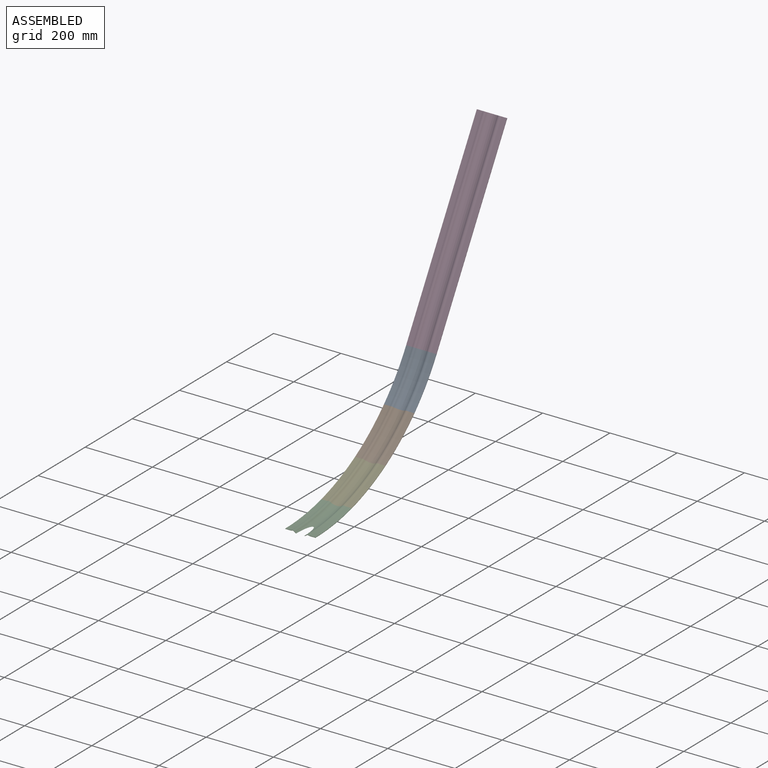
[diagram: assembled view]
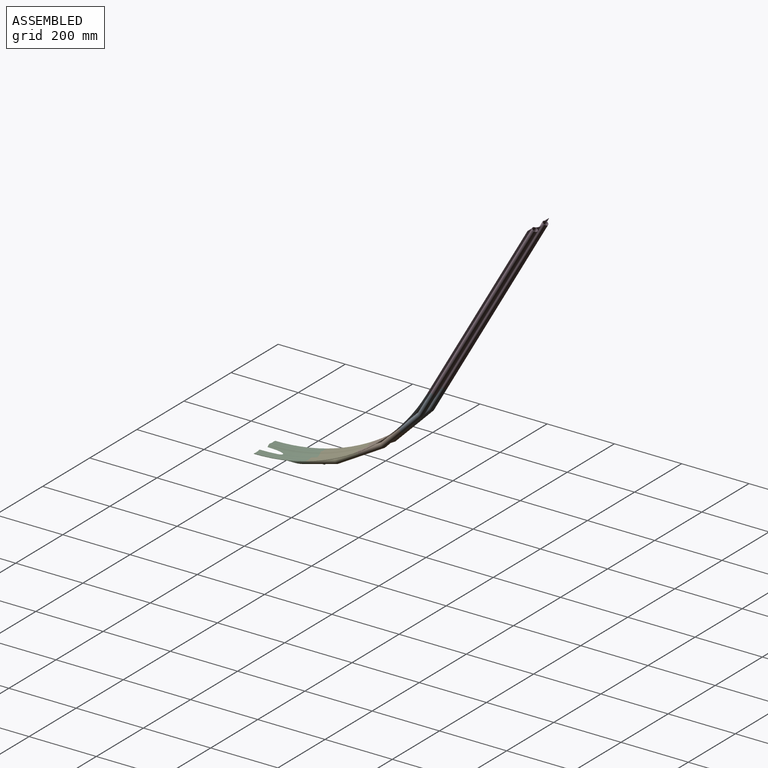
[diagram: assembled view, second angle]
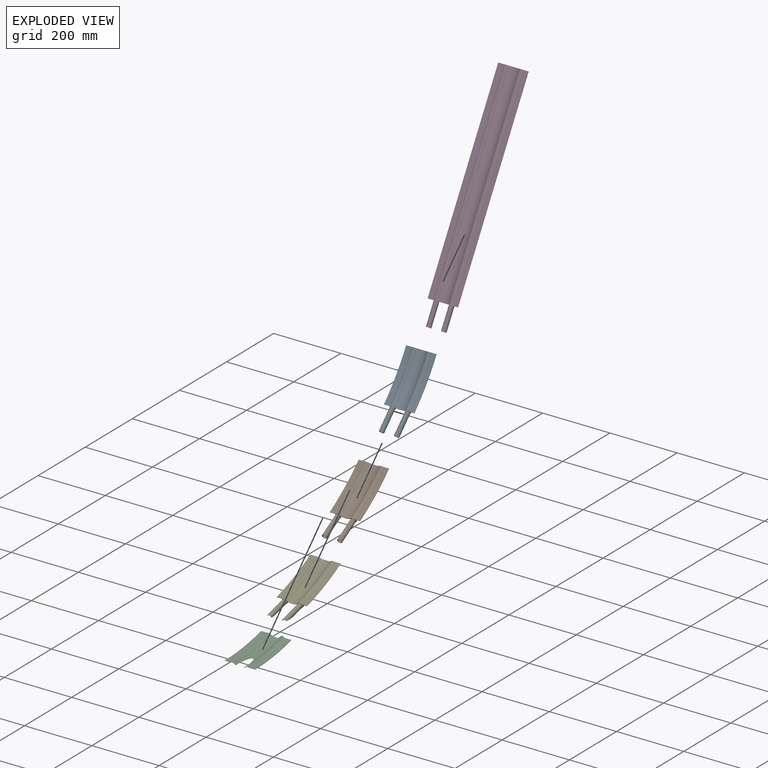
[diagram: exploded view]
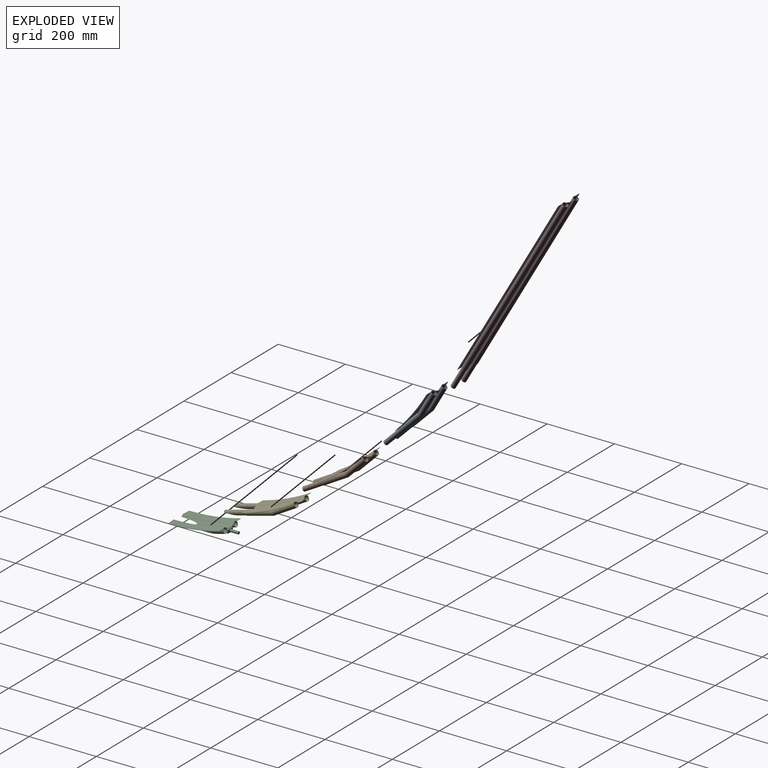
[diagram: exploded view, second angle]
ASSEMBLY  parts=5 mates=4
PART A: 38 faces, bbox 90x225.5x34.1 mm
  f0: cylinder r=7mm len=15.5mm, axis (0,-0.99,0.13), area 505.4mm2, adj f29,f37
  f1: cylinder r=7mm len=15.5mm, axis (0,-0.99,0.13), area 505.4mm2, adj f26,f33
  f2: torus R=577.2mm, axis (-1,0,0), area 653.1mm2, adj f3,f8,f9,f21,f24,f27
  f3: torus R=600mm, axis (-1,0,0), area 638mm2, adj f2,f4,f24,f27
  f4: torus R=582.72mm, axis (-1,0,0), area 669.3mm2, adj f3,f8,f9,f22,f24,f27
  f5: torus R=582.72mm, axis (-1,0,0), area 669.3mm2, adj f6,f8,f9,f22,f25,f28
  f6: torus R=600mm, axis (-1,0,0), area 638mm2, adj f5,f7,f25,f28
  f7: torus R=577.2mm, axis (-1,0,0), area 653.1mm2, adj f6,f8,f9,f23,f25,f28
  f8: plane 90x15.86mm, normal (0,0.99,0.13), area 163.4mm2, adj f2,f4,f5,f7,f10,f11,f12,f13
  f9: plane 90x15.86mm, normal (0,-0.99,0.13), area 163.4mm2, adj f2,f4,f5,f7,f10,f11,f12,f13
  f10: plane 155.12x6.08mm, normal (1,0,0), area 155.4mm2, adj f8,f9,f11,f23
  f11: cylinder r=593.2mm len=154.86mm, axis (-1,0,0), area 2329.5mm2, adj f8,f9,f10,f12
  f12: torus R=577.2mm, axis (-1,0,0), area 789.4mm2, adj f8,f9,f11,f13
  f13: torus R=600mm, axis (-1,0,0), area 1346.6mm2, adj f8,f9,f12,f14
  f14: torus R=582.72mm, axis (-1,0,0), area 840.6mm2, adj f8,f9,f13,f15
  f15: torus R=570mm, axis (-1,0,0), area 4050.3mm2, adj f8,f9,f14,f16
  f16: torus R=582.72mm, axis (-1,0,0), area 840.6mm2, adj f8,f9,f15,f17
  f17: torus R=600mm, axis (-1,0,0), area 1346.6mm2, adj f8,f9,f16,f18
  f18: torus R=577.2mm, axis (-1,0,0), area 789.4mm2, adj f8,f9,f17,f19
  f19: cylinder r=593.2mm len=154.86mm, axis (-1,0,0), area 2329.5mm2, adj f8,f9,f18,f20
  f20: plane 155.12x6.08mm, normal (-1,0,0), area 155.4mm2, adj f8,f9,f19,f21
  f21: cylinder r=594.2mm len=155.12mm, axis (-1,0,0), area 2333.4mm2, adj f2,f8,f9,f20
  f22: torus R=570mm, axis (-1,0,0), area 4192.1mm2, adj f4,f5,f8,f9
  f23: cylinder r=594.2mm len=155.12mm, axis (-1,0,0), area 2333.4mm2, adj f7,f8,f9,f10
  f24: cylinder r=8mm len=81.45mm, axis (0,-0.99,0.13), area 3464.8mm2, adj f2,f3,f4,f9,f27
  f25: cylinder r=8mm len=81.45mm, axis (0,-0.99,0.13), area 3464.6mm2, adj f5,f6,f7,f9,f28
  f26: cylinder r=7mm len=81.06mm, axis (0,0.99,0.13), area 3474.2mm2, adj f1,f8
  f27: cylinder r=8mm len=81.45mm, axis (0,0.99,0.13), area 3465.4mm2, adj f2,f3,f4,f8,f24
  f28: cylinder r=8mm len=81.45mm, axis (0,0.99,0.13), area 3465.6mm2, adj f5,f6,f7,f8,f25
  f29: cylinder r=7mm len=81.06mm, axis (0,0.99,0.13), area 3474.2mm2, adj f0,f8
  f30: cylinder r=6mm len=135.41mm, axis (0,0.99,-0.13), area 5089.4mm2, adj f32,f33
  f31: cylinder r=7mm len=68.75mm, axis (0,0.99,-0.13), area 2968.8mm2, adj f9,f32
  f32: plane 14x13.88mm, normal (0,-0.99,0.13), area 40.8mm2, adj f30,f31
  f33: plane 14x13.88mm, normal (0,0.99,-0.13), area 40.8mm2, adj f1,f30
  f34: cylinder r=7mm len=68.75mm, axis (0,0.99,-0.13), area 2968.8mm2, adj f9,f36
  f35: cylinder r=6mm len=135.41mm, axis (0,0.99,-0.13), area 5089.4mm2, adj f36,f37
  f36: plane 14x13.88mm, normal (0,-0.99,0.13), area 40.8mm2, adj f34,f35
  f37: plane 14x13.88mm, normal (0,0.99,-0.13), area 40.8mm2, adj f0,f35
PART B: same geometry as A
PART C: 47 faces, bbox 90.2x181.4x29.7 mm
  f0: cylinder r=7mm len=77.91mm, axis (0,-0.99,0.13), area 593.5mm2, adj f2,f9,f31,f33
  f1: cylinder r=7mm len=77.91mm, axis (0,-0.99,0.13), area 593.5mm2, adj f3,f6,f36,f38
  f2: plane 33.01x5.45mm, normal (0,-0.99,0.13), area 33.5mm2, adj f0,f13,f15,f17,f18,f19,f20,f21
  f3: plane 33.01x5.45mm, normal (0,-0.99,0.13), area 33.5mm2, adj f1,f10,f12,f22,f23,f24,f25,f26
  f4: cylinder r=8mm len=78.57mm, axis (0,-0.99,0.13), area 694.2mm2, adj f7,f10,f11,f12,f36,f38
  f5: cylinder r=8mm len=78.57mm, axis (0,-0.99,0.13), area 694.2mm2, adj f8,f13,f14,f15,f31,f33
  f6: cylinder r=7mm len=79.5mm, axis (0,0.99,0.13), area 2518.9mm2, adj f1,f16,f36,f37,f38
  f7: cylinder r=8mm len=80.01mm, axis (0,0.99,0.13), area 2364.8mm2, adj f4,f10,f11,f12,f16,f35,f36,f37
  f8: cylinder r=8mm len=80.01mm, axis (0,0.99,0.13), area 2365.1mm2, adj f5,f13,f14,f15,f16,f31,f32,f33
  f9: cylinder r=7mm len=79.5mm, axis (0,0.99,0.13), area 2518.9mm2, adj f0,f16,f31,f32,f33
  f10: torus R=577.2mm, axis (-1,0,0), area 653.1mm2, adj f3,f4,f7,f11,f16,f28
  f11: torus R=600mm, axis (-1,0,0), area 638.3mm2, adj f4,f7,f10,f12
  f12: torus R=582.72mm, axis (-1,0,0), area 640.9mm2, adj f3,f4,f7,f11,f16,f29,f39
  f13: torus R=582.72mm, axis (-1,0,0), area 640.9mm2, adj f2,f5,f8,f14,f16,f29,f39
  f14: torus R=600mm, axis (-1,0,0), area 638.3mm2, adj f5,f8,f13,f15
  f15: torus R=577.2mm, axis (-1,0,0), area 653.1mm2, adj f2,f5,f8,f14,f16,f30
  f16: plane 90x15.86mm, normal (0,0.99,0.13), area 163.4mm2, adj f6,f7,f8,f9,f10,f12,f13,f15
  f17: plane 155.12x6.08mm, normal (1,0,0), area 155.4mm2, adj f2,f16,f18,f30
  f18: cylinder r=593.2mm len=154.86mm, axis (-1,0,0), area 2329.5mm2, adj f2,f16,f17,f19
  f19: torus R=577.2mm, axis (-1,0,0), area 789.4mm2, adj f2,f16,f18,f20
  f20: torus R=600mm, axis (-1,0,0), area 1346.6mm2, adj f2,f16,f19,f21
  f21: torus R=582.72mm, axis (-1,0,0), area 840.6mm2, adj f2,f16,f20,f22
  f22: torus R=570mm, axis (-1,0,0), area 2995.3mm2, adj f2,f3,f16,f21,f23,f39
  f23: torus R=582.72mm, axis (-1,0,0), area 840.6mm2, adj f3,f16,f22,f24
  f24: torus R=600mm, axis (-1,0,0), area 1346.6mm2, adj f3,f16,f23,f25
  f25: torus R=577.2mm, axis (-1,0,0), area 789.4mm2, adj f3,f16,f24,f26
  f26: cylinder r=593.2mm len=154.86mm, axis (-1,0,0), area 2329.5mm2, adj f3,f16,f25,f27
  f27: plane 155.12x6.08mm, normal (-1,0,0), area 155.4mm2, adj f3,f16,f26,f28
  f28: cylinder r=594.2mm len=155.12mm, axis (-1,0,0), area 2333.4mm2, adj f3,f10,f16,f27
  f29: torus R=570mm, axis (-1,0,0), area 1711.8mm2, adj f12,f13,f16,f39,f40,f42,f43,f44
  f30: cylinder r=594.2mm len=155.12mm, axis (-1,0,0), area 2333.4mm2, adj f2,f15,f16,f17
  f31: cylinder r=17mm len=121.62mm, axis (0,-0.99,0.13), area 305.4mm2, adj f0,f2,f5,f8,f9,f32
  f32: cylinder r=7mm len=18.85mm, axis (0,-0.99,0.13), area 31.5mm2, adj f8,f9,f31,f33
  f33: cylinder r=17mm len=132.51mm, axis (0,-0.99,0.13), area 313.3mm2, adj f0,f2,f5,f8,f9,f32,f34
  f34: plane 21.5x2.98mm, normal (0,-0.13,-0.99), area 7.2mm2, adj f8,f33
  f35: plane 21.5x2.98mm, normal (0,-0.13,-0.99), area 7.2mm2, adj f7,f36
  f36: cylinder r=17mm len=132.51mm, axis (0,-0.99,0.13), area 313.3mm2, adj f1,f3,f4,f6,f7,f35,f37
  f37: cylinder r=7mm len=18.85mm, axis (0,-0.99,0.13), area 31.5mm2, adj f6,f7,f36,f38
  f38: cylinder r=17mm len=121.62mm, axis (0,-0.99,0.13), area 305.4mm2, adj f1,f3,f4,f6,f7,f37
  f39: plane 64.22x28.49mm, normal (0,-0.13,-0.99), area 428.6mm2, adj f2,f3,f12,f13,f22,f29
  f40: plane 67.32x20mm, normal (0,-0.13,-0.99), area 1212.1mm2, adj f29,f41,f42,f43
  f41: plane 20x9.91mm, normal (0,0.99,-0.13), area 149.7mm2, adj f40,f42,f43,f44,f45
  f42: plane 68.63x11.99mm, normal (1,0,0), area 398.4mm2, adj f29,f40,f41,f44
  f43: plane 68.63x11.99mm, normal (-1,0,0), area 398.4mm2, adj f29,f40,f41,f44
  f44: plane 20x15.78mm, normal (0,0.13,0.99), area 224.3mm2, adj f29,f41,f42,f43
  f45: cylinder r=4mm len=25.83mm, axis (0,-0.99,0.13), area 628.3mm2, adj f41,f46
  f46: plane 8x7.93mm, normal (0,0.99,-0.13), area 50.3mm2, adj f45
PART D: 32 faces, bbox 90x667.5x16 mm
  f0: cylinder r=7mm len=532.5mm, axis (0,-1,0), area 23420.6mm2, adj f22,f31
  f1: cylinder r=7mm len=532.5mm, axis (0,-1,0), area 23420.6mm2, adj f22,f27
  f2: plane 600x15mm, normal (0,0,-1), area 9000mm2, adj f3,f21,f22,f23
  f3: cylinder r=17mm len=600mm, axis (0,-1,0), area 1283mm2, adj f2,f4,f22,f23
  f4: cylinder r=8mm len=600mm, axis (0,-1,0), area 20942.2mm2, adj f3,f5,f22,f23
  f5: cylinder r=17mm len=600mm, axis (0,-1,0), area 1476.4mm2, adj f4,f6,f22,f23
  f6: cylinder r=31mm len=600mm, axis (0,-1,0), area 16011.1mm2, adj f5,f7,f22,f23
  f7: cylinder r=17mm len=600mm, axis (0,-1,0), area 1476.4mm2, adj f6,f8,f22,f23
  f8: cylinder r=8mm len=600mm, axis (0,-1,0), area 20942.2mm2, adj f7,f9,f22,f23
  f9: cylinder r=17mm len=600mm, axis (0,-1,0), area 1283mm2, adj f8,f10,f22,f23
  f10: plane 600x15mm, normal (0,0,-1), area 9000mm2, adj f9,f11,f22,f23
  f11: plane 600x1mm, normal (1,0,0), area 600mm2, adj f10,f12,f22,f23
  f12: plane 600x15mm, normal (0,0,1), area 9000mm2, adj f11,f13,f22,f23
  f13: cylinder r=16mm len=600mm, axis (0,-1,0), area 3051.1mm2, adj f12,f14,f22,f23
  f14: cylinder r=8mm len=600mm, axis (0,-1,0), area 5208mm2, adj f13,f15,f22,f23
  f15: cylinder r=16mm len=600mm, axis (0,-1,0), area 3233.1mm2, adj f14,f16,f22,f23
  f16: cylinder r=30mm len=600mm, axis (0,-1,0), area 15494.6mm2, adj f15,f17,f22,f23
  f17: cylinder r=16mm len=600mm, axis (0,-1,0), area 3233.1mm2, adj f16,f18,f22,f23
  f18: cylinder r=8mm len=600mm, axis (0,-1,0), area 5208mm2, adj f17,f19,f22,f23
  f19: cylinder r=16mm len=600mm, axis (0,-1,0), area 3051.1mm2, adj f18,f20,f22,f23
  f20: plane 600x15mm, normal (0,0,1), area 9000mm2, adj f19,f21,f22,f23
  f21: plane 600x1mm, normal (-1,0,0), area 600mm2, adj f2,f20,f22,f23
  f22: plane 90x16mm, normal (0,1,0), area 163.4mm2, adj f0,f1,f2,f3,f4,f5,f6,f7
  f23: plane 90x16mm, normal (0,-1,0), area 163.4mm2, adj f2,f3,f4,f5,f6,f7,f8,f9
  f24: cylinder r=6mm len=135mm, axis (0,1,0), area 5089.4mm2, adj f26,f27
  f25: cylinder r=7mm len=67.5mm, axis (0,1,0), area 2968.8mm2, adj f23,f26
  f26: plane 14x14mm, normal (0,-1,0), area 40.8mm2, adj f24,f25
  f27: plane 14x14mm, normal (0,1,0), area 40.8mm2, adj f1,f24
  f28: cylinder r=7mm len=67.5mm, axis (0,1,0), area 2968.8mm2, adj f23,f30
  f29: cylinder r=6mm len=135mm, axis (0,1,0), area 5089.4mm2, adj f30,f31
  f30: plane 14x14mm, normal (0,-1,0), area 40.8mm2, adj f28,f29
  f31: plane 14x14mm, normal (0,1,0), area 40.8mm2, adj f0,f29
PART E: 44 faces, bbox 90x225.5x34.1 mm
  f0: plane 13.34x6.62mm, normal (0,-0.99,0.13), area 16.5mm2, adj f32,f33,f41,f43
  f1: plane 13.34x6.62mm, normal (0,-0.99,0.13), area 16.5mm2, adj f35,f36,f38,f39
  f2: cylinder r=7mm len=15.5mm, axis (0,-0.99,0.13), area 505.4mm2, adj f31,f37
  f3: cylinder r=7mm len=15.5mm, axis (0,-0.99,0.13), area 505.4mm2, adj f28,f34
  f4: torus R=577.2mm, axis (-1,0,0), area 653.1mm2, adj f5,f10,f11,f23,f26,f29
  f5: torus R=600mm, axis (-1,0,0), area 638mm2, adj f4,f6,f26,f29
  f6: torus R=582.72mm, axis (-1,0,0), area 669.3mm2, adj f5,f10,f11,f24,f26,f29
  f7: torus R=582.72mm, axis (-1,0,0), area 669.3mm2, adj f8,f10,f11,f24,f27,f30
  f8: torus R=600mm, axis (-1,0,0), area 638mm2, adj f7,f9,f27,f30
  f9: torus R=577.2mm, axis (-1,0,0), area 653.1mm2, adj f8,f10,f11,f25,f27,f30
  f10: plane 90x15.86mm, normal (0,0.99,0.13), area 163.4mm2, adj f4,f6,f7,f9,f12,f13,f14,f15
  f11: plane 90x15.86mm, normal (0,-0.99,0.13), area 163.4mm2, adj f4,f6,f7,f9,f12,f13,f14,f15
  f12: plane 155.12x6.08mm, normal (1,0,0), area 155.4mm2, adj f10,f11,f13,f25
  f13: cylinder r=593.2mm len=154.86mm, axis (-1,0,0), area 2329.5mm2, adj f10,f11,f12,f14
  f14: torus R=577.2mm, axis (-1,0,0), area 789.4mm2, adj f10,f11,f13,f15
  f15: torus R=600mm, axis (-1,0,0), area 1346.6mm2, adj f10,f11,f14,f16
  f16: torus R=582.72mm, axis (-1,0,0), area 840.6mm2, adj f10,f11,f15,f17
  f17: torus R=570mm, axis (-1,0,0), area 4050.3mm2, adj f10,f11,f16,f18
  f18: torus R=582.72mm, axis (-1,0,0), area 840.6mm2, adj f10,f11,f17,f19
  f19: torus R=600mm, axis (-1,0,0), area 1346.6mm2, adj f10,f11,f18,f20
  f20: torus R=577.2mm, axis (-1,0,0), area 789.4mm2, adj f10,f11,f19,f21
  f21: cylinder r=593.2mm len=154.86mm, axis (-1,0,0), area 2329.5mm2, adj f10,f11,f20,f22
  f22: plane 155.12x6.08mm, normal (-1,0,0), area 155.4mm2, adj f10,f11,f21,f23
  f23: cylinder r=594.2mm len=155.12mm, axis (-1,0,0), area 2333.4mm2, adj f4,f10,f11,f22
  f24: torus R=570mm, axis (-1,0,0), area 4192.1mm2, adj f6,f7,f10,f11
  f25: cylinder r=594.2mm len=155.12mm, axis (-1,0,0), area 2333.4mm2, adj f9,f10,f11,f12
  f26: cylinder r=8mm len=81.45mm, axis (0,-0.99,0.13), area 3464.8mm2, adj f4,f5,f6,f11,f29
  f27: cylinder r=8mm len=81.45mm, axis (0,-0.99,0.13), area 3464.6mm2, adj f7,f8,f9,f11,f30
  f28: cylinder r=7mm len=81.06mm, axis (0,0.99,0.13), area 3474.2mm2, adj f3,f10
  f29: cylinder r=8mm len=81.45mm, axis (0,0.99,0.13), area 3465.4mm2, adj f4,f5,f6,f10,f26
  f30: cylinder r=8mm len=81.45mm, axis (0,0.99,0.13), area 3465.6mm2, adj f7,f8,f9,f10,f27
  f31: cylinder r=7mm len=81.06mm, axis (0,0.99,0.13), area 3474.2mm2, adj f2,f10
  f32: cylinder r=6mm len=135.41mm, axis (0,0.99,-0.13), area 4587.9mm2, adj f0,f34,f41,f42,f43
  f33: cylinder r=7mm len=68.75mm, axis (0,0.99,-0.13), area 2356.9mm2, adj f0,f11,f41,f42,f43
  f34: plane 14x13.88mm, normal (0,0.99,-0.13), area 40.8mm2, adj f3,f32
  f35: cylinder r=7mm len=68.75mm, axis (0,0.99,-0.13), area 2356.9mm2, adj f1,f11,f38,f39,f40
  f36: cylinder r=6mm len=135.41mm, axis (0,0.99,-0.13), area 4587.9mm2, adj f1,f37,f38,f39,f40
  f37: plane 14x13.88mm, normal (0,0.99,-0.13), area 40.8mm2, adj f2,f36
  f38: cylinder r=17mm len=26.06mm, axis (0,-0.92,0.38), area 27.1mm2, adj f1,f35,f36,f40
  f39: cylinder r=17mm len=37.47mm, axis (0,-0.92,0.38), area 43.5mm2, adj f1,f35,f36,f40
  f40: cylinder r=7mm len=19.94mm, axis (0,-0.92,0.38), area 32.5mm2, adj f35,f36,f38,f39
  f41: cylinder r=17mm len=37.47mm, axis (0,-0.92,0.38), area 43.5mm2, adj f0,f32,f33,f42
  f42: cylinder r=7mm len=19.94mm, axis (0,-0.92,0.38), area 32.5mm2, adj f32,f33,f41,f43
  f43: cylinder r=17mm len=26.06mm, axis (0,-0.92,0.38), area 27.1mm2, adj f0,f32,f33,f42
PLACE A rot(axis=(1,0,0),52.5deg) t=(0,482.36,229.87)mm
PLACE B rot(axis=(1,0,0),37.5deg) t=(0,370.13,117.64)mm
PLACE C rot(axis=(1,0,0),7.5deg) t=(0,79.36,-2.8)mm
PLACE D rot(axis=(1,0,0),60deg) t=(0,526.54,296)mm
PLACE E rot(axis=(1,0,0),22.5deg) t=(0,232.67,38.28)mm
MATE fastened C.f8 <-> E.f35  axis (0,0.97,0.26) through (22.5,155.29,20.44)mm
MATE fastened D.f0 <-> A.f28  axis (0,-0.5,-0.87) through (22.5,519.62,300)mm
MATE fastened E.f30 <-> B.f34  axis (0,0.87,0.5) through (22.5,300,80.38)mm
MATE fastened B.f28 <-> A.f34  axis (0,0.71,0.71) through (22.5,424.26,175.74)mm
